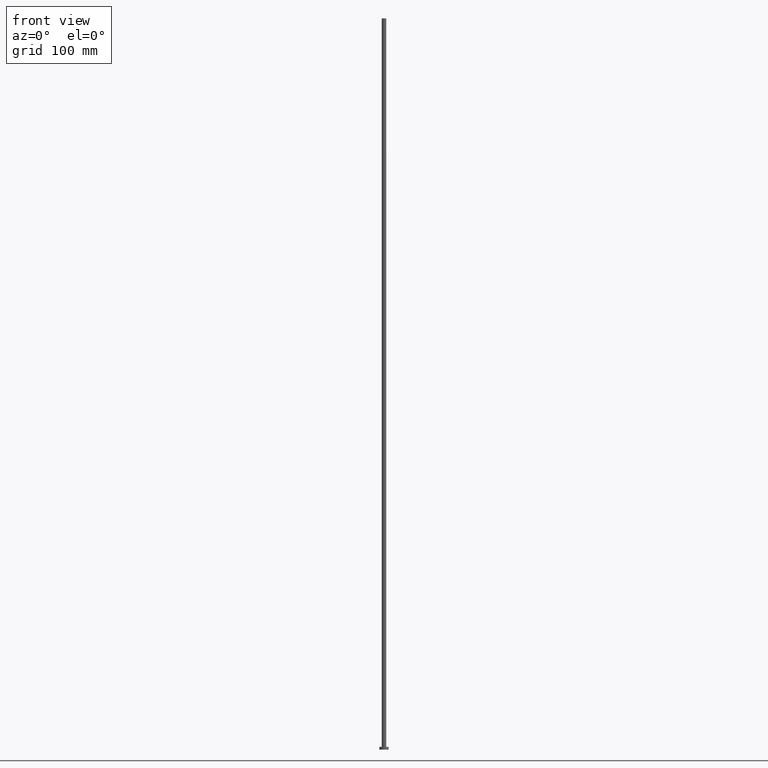
[diagram: clean part render]
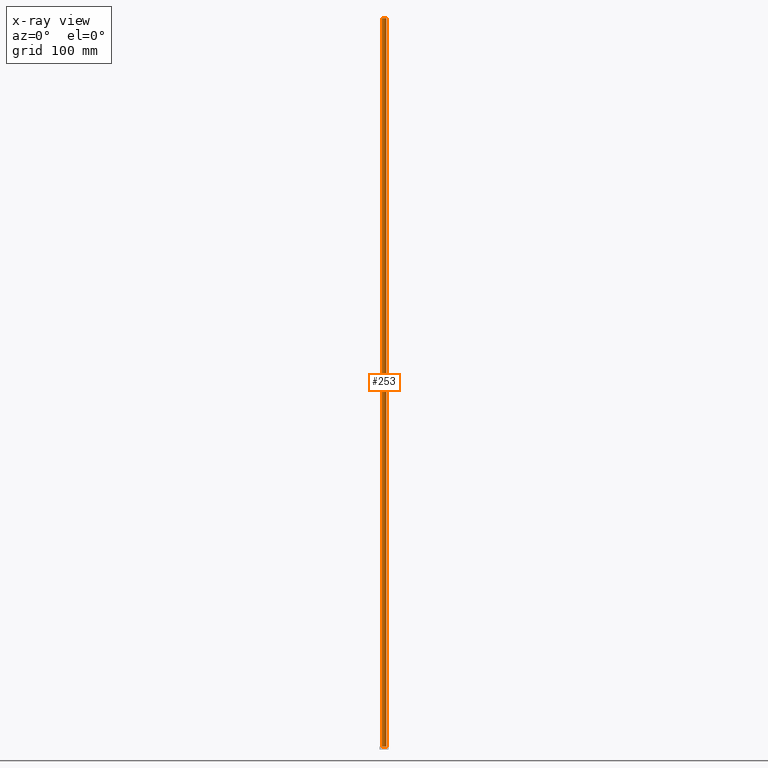
[diagram: x-ray — body ghosted, one internal face saturated and labeled with its STEP entity id]
A machine part, front view, then the same camera in x-ray: the body is ghosted and one INTERNAL B-rep face — a face not visible from any outside direction — is saturated and labeled: STEP entity #253.
In plain terms, the highlighted cylindrical surface (edge-blend (fillet) strip) has radius 2.5 mm, axis along (-0, -0, -1).
Its self-contained STEP definition (entity closure, byte-faithful):
#1 = ORIENTED_EDGE ( 'NONE', *, *, #185, .T. ) ;
#5 = DIRECTION ( 'NONE',  ( -0.000000000000000000, -0.000000000000000000, -1.000000000000000000 ) ) ;
#27 = CARTESIAN_POINT ( 'NONE',  ( 0.000000000000000000, 0.000000000000000000, 800.0000000000000000 ) ) ;
#31 = AXIS2_PLACEMENT_3D ( 'NONE', #179, #68, #232 ) ;
#35 = VERTEX_POINT ( 'NONE', #105 ) ;
#43 = CYLINDRICAL_SURFACE ( 'NONE', #79, 2.500000000000000000 ) ;
#49 = EDGE_CURVE ( 'NONE', #35, #239, #101, .T. ) ;
#52 = EDGE_CURVE ( 'NONE', #35, #126, #56, .T. ) ;
#56 = CIRCLE ( 'NONE', #96, 2.500000000000000000 ) ;
#58 = DIRECTION ( 'NONE',  ( 1.000000000000000000, 0.000000000000000000, 0.000000000000000000 ) ) ;
#59 = DIRECTION ( 'NONE',  ( -0.000000000000000000, -0.000000000000000000, -1.000000000000000000 ) ) ;
#60 = DIRECTION ( 'NONE',  ( -0.000000000000000000, -0.000000000000000000, -1.000000000000000000 ) ) ;
#68 = DIRECTION ( 'NONE',  ( 0.000000000000000000, 0.000000000000000000, 1.000000000000000000 ) ) ;
#73 = EDGE_LOOP ( 'NONE', ( #200, #184, #1, #202 ) ) ;
#79 = AXIS2_PLACEMENT_3D ( 'NONE', #189, #5, #132 ) ;
#89 = DIRECTION ( 'NONE',  ( 0.000000000000000000, 0.000000000000000000, 1.000000000000000000 ) ) ;
#96 = AXIS2_PLACEMENT_3D ( 'NONE', #27, #89, #58 ) ;
#99 = VERTEX_POINT ( 'NONE', #131 ) ;
#101 = LINE ( 'NONE', #242, #104 ) ;
#102 = LINE ( 'NONE', #133, #178 ) ;
#104 = VECTOR ( 'NONE', #60, 1000.000000000000000 ) ;
#105 = CARTESIAN_POINT ( 'NONE',  ( 2.500000000000000000, 3.061616997868383141E-16, 800.0000000000000000 ) ) ;
#106 = FACE_OUTER_BOUND ( 'NONE', #73, .T. ) ;
#126 = VERTEX_POINT ( 'NONE', #146 ) ;
#131 = CARTESIAN_POINT ( 'NONE',  ( -2.500000000000000000, 0.000000000000000000, 3.000000000000000000 ) ) ;
#132 = DIRECTION ( 'NONE',  ( -1.000000000000000000, 0.000000000000000000, 0.000000000000000000 ) ) ;
#133 = CARTESIAN_POINT ( 'NONE',  ( -2.500000000000000000, 0.000000000000000000, 800.0000000000000000 ) ) ;
#146 = CARTESIAN_POINT ( 'NONE',  ( -2.500000000000000000, 0.000000000000000000, 800.0000000000000000 ) ) ;
#151 = CIRCLE ( 'NONE', #31, 2.500000000000000000 ) ;
#178 = VECTOR ( 'NONE', #59, 1000.000000000000000 ) ;
#179 = CARTESIAN_POINT ( 'NONE',  ( 0.000000000000000000, 0.000000000000000000, 3.000000000000000000 ) ) ;
#184 = ORIENTED_EDGE ( 'NONE', *, *, #49, .T. ) ;
#185 = EDGE_CURVE ( 'NONE', #239, #99, #151, .T. ) ;
#189 = CARTESIAN_POINT ( 'NONE',  ( 0.000000000000000000, 0.000000000000000000, 800.0000000000000000 ) ) ;
#200 = ORIENTED_EDGE ( 'NONE', *, *, #52, .F. ) ;
#202 = ORIENTED_EDGE ( 'NONE', *, *, #211, .F. ) ;
#211 = EDGE_CURVE ( 'NONE', #126, #99, #102, .T. ) ;
#226 = CARTESIAN_POINT ( 'NONE',  ( 2.500000000000000000, 3.061616997868383141E-16, 3.000000000000000000 ) ) ;
#232 = DIRECTION ( 'NONE',  ( 1.000000000000000000, 0.000000000000000000, 0.000000000000000000 ) ) ;
#239 = VERTEX_POINT ( 'NONE', #226 ) ;
#242 = CARTESIAN_POINT ( 'NONE',  ( 2.500000000000000000, 3.061616997868383141E-16, 800.0000000000000000 ) ) ;
#253 = ADVANCED_FACE ( 'NONE', ( #106 ), #43, .T. ) ;